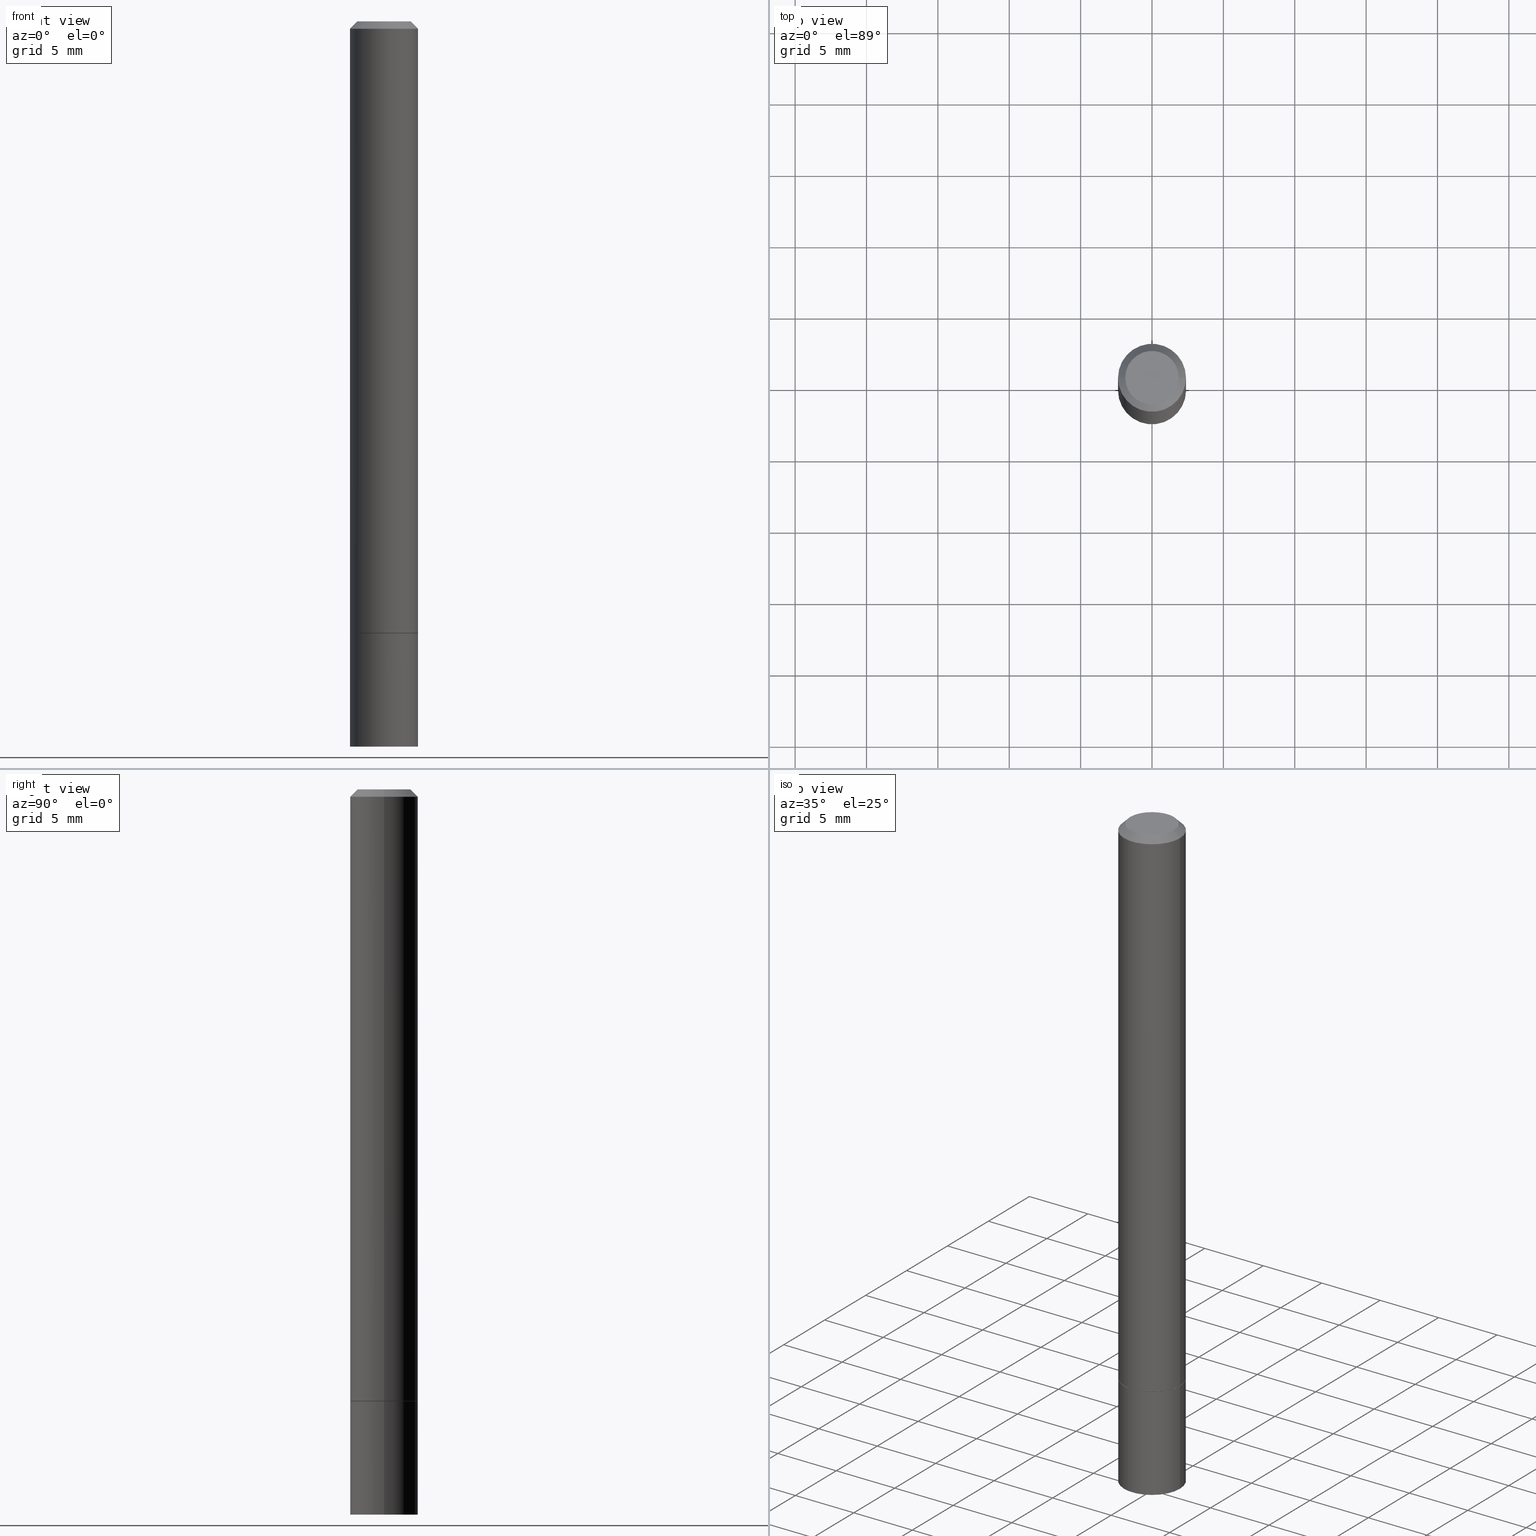
[diagram: canonical four-view strip — front | top / right | iso, engineering-drawing reading convention]
A machine part, canonical four-view strip (front | top / right | iso — engineering-drawing reading convention). The complete STEP part file that produces these views, byte-faithful:
ISO-10303-21;
HEADER;
FILE_DESCRIPTION (( 'STEP AP203' ),
    '1' );
FILE_NAME ('38501.STEP',
    '2024-02-27T22:51:59',
    ( '' ),
    ( '' ),
    'SwSTEP 2.0',
    'SolidWorks 2023',
    '' );
FILE_SCHEMA (( 'CONFIG_CONTROL_DESIGN' ));
ENDSEC;

DATA;
#1 = CARTESIAN_POINT ( 'NONE',  ( 4.890937612370273194E-29, -6.982962677686291165E-15, -2.000000000000000000 ) ) ;
#2 = CARTESIAN_POINT ( 'NONE',  ( -0.09374999999999988898, 6.661338147750931354E-16, -4.611501647113968390E-30 ) ) ;
#3 = EDGE_CURVE ( 'NONE', #359, #108, #273, .T. ) ;
#4 = SECURITY_CLASSIFICATION ( '', '', #357 ) ;
#5 = ORIENTED_EDGE ( 'NONE', *, *, #98, .F. ) ;
#6 = APPROVAL ( #272, 'UNSPECIFIED' ) ;
#7 = CARTESIAN_POINT ( 'NONE',  ( 0.000000000000000000, 0.000000000000000000, 0.000000000000000000 ) ) ;
#8 = ORIENTED_EDGE ( 'NONE', *, *, #365, .F. ) ;
#9 = CARTESIAN_POINT ( 'NONE',  ( 6.546527510331287221E-16, 0.09374999999999411582, -1.687500000000000222 ) ) ;
#10 = MANIFOLD_SOLID_BREP ( 'Body-Move/Copy2[1]', #242 ) ;
#11 = FACE_OUTER_BOUND ( 'NONE', #159, .T. ) ;
#12 = AXIS2_PLACEMENT_3D ( 'NONE', #259, #60, #363 ) ;
#13 = EDGE_CURVE ( 'NONE', #307, #50, #230, .T. ) ;
#14 = AXIS2_PLACEMENT_3D ( 'NONE', #227, #316, #290 ) ;
#15 = ORIENTED_EDGE ( 'NONE', *, *, #293, .T. ) ;
#16 = ADVANCED_FACE ( 'NONE', ( #254 ), #19, .T. ) ;
#17 = CALENDAR_DATE ( 2024, 27, 2 ) ;
#18 = CARTESIAN_POINT ( 'NONE',  ( -0.09374999999999979183, 5.848231242562229240E-16, -0.02000000000000003858 ) ) ;
#19 = CYLINDRICAL_SURFACE ( 'NONE', #223, 0.09374999999999988898 ) ;
#20 = CIRCLE ( 'NONE', #214, 0.09374999999999979183 ) ;
#21 = AXIS2_PLACEMENT_3D ( 'NONE', #7, #350, #121 ) ;
#22 = PERSON_AND_ORGANIZATION ( #87, #174 ) ;
#23 = VERTEX_POINT ( 'NONE', #332 ) ;
#24 = PERSON_AND_ORGANIZATION_ROLE ( 'creator' ) ;
#25 = EDGE_CURVE ( 'NONE', #305, #23, #339, .T. ) ;
#26 = ORIENTED_EDGE ( 'NONE', *, *, #139, .F. ) ;
#27 = EDGE_LOOP ( 'NONE', ( #301, #134, #5, #26 ) ) ;
#28 = DIRECTION ( 'NONE',  ( 1.000000000000000000, -6.982962677686261189E-15, 0.000000000000000000 ) ) ;
#29 = CC_DESIGN_PERSON_AND_ORGANIZATION_ASSIGNMENT ( #110, #191, ( #32 ) ) ;
#30 = CARTESIAN_POINT ( 'NONE',  ( 0.09375000000000001388, -7.637615428719378669E-15, -2.000000000000000000 ) ) ;
#31 = FACE_OUTER_BOUND ( 'NONE', #226, .T. ) ;
#32 = PRODUCT_DEFINITION_FORMATION_WITH_SPECIFIED_SOURCE ( 'ANY', '', #333, .NOT_KNOWN. ) ;
#33 = DIRECTION ( 'NONE',  ( 2.445468806185136597E-29, -3.491481338843145583E-15, -1.000000000000000000 ) ) ;
#34 = DIRECTION ( 'NONE',  ( -1.000000000000000000, 6.982962677686266711E-15, 0.000000000000000000 ) ) ;
#35 = PLANE ( 'NONE',  #43 ) ;
#36 = CLOSED_SHELL ( 'NONE', ( #219, #236, #162, #323, #16, #131, #202, #144 ) ) ;
#37 = CC_DESIGN_APPROVAL ( #6, ( #4 ) ) ;
#38 = CARTESIAN_POINT ( 'NONE',  ( 0.07374999999999981570, -6.094815207017959226E-16, 4.268512490104342487E-18 ) ) ;
#39 = DIRECTION ( 'NONE',  ( -2.445468806185136597E-29, 3.491481338843145583E-15, 1.000000000000000000 ) ) ;
#40 = EDGE_CURVE ( 'NONE', #307, #108, #92, .T. ) ;
#41 = DIRECTION ( 'NONE',  ( 2.438088387897960049E-29, -3.491481338843145188E-15, -1.000000000000000000 ) ) ;
#42 = CARTESIAN_POINT ( 'NONE',  ( 0.000000000000000000, 0.000000000000000000, 0.000000000000000000 ) ) ;
#43 = AXIS2_PLACEMENT_3D ( 'NONE', #9, #41, #348 ) ;
#44 = COORDINATED_UNIVERSAL_TIME_OFFSET ( 5, 0, .BEHIND. ) ;
#45 = ORIENTED_EDGE ( 'NONE', *, *, #127, .T. ) ;
#46 = APPROVAL_STATUS ( 'not_yet_approved' ) ;
#47 = DIRECTION ( 'NONE',  ( 1.000000000000000000, -6.982962677686265133E-15, 4.876176775795935793E-29 ) ) ;
#48 = COORDINATED_UNIVERSAL_TIME_OFFSET ( 5, 0, .BEHIND. ) ;
#49 = AXIS2_PLACEMENT_3D ( 'NONE', #246, #302, #353 ) ;
#50 = VERTEX_POINT ( 'NONE', #57 ) ;
#51 = AXIS2_PLACEMENT_3D ( 'NONE', #291, #96, #210 ) ;
#52 = COORDINATED_UNIVERSAL_TIME_OFFSET ( 5, 0, .BEHIND. ) ;
#53 = ORIENTED_EDGE ( 'NONE', *, *, #25, .T. ) ;
#54 = PERSON_AND_ORGANIZATION ( #87, #174 ) ;
#55 = ORIENTED_EDGE ( 'NONE', *, *, #293, .F. ) ;
#56 = CC_DESIGN_PERSON_AND_ORGANIZATION_ASSIGNMENT ( #352, #24, ( #257 ) ) ;
#57 = CARTESIAN_POINT ( 'NONE',  ( 0.09375000000000001388, -6.543036028992051756E-15, -1.686499999999999888 ) ) ;
#58 = CIRCLE ( 'NONE', #208, 0.09274999999999999911 ) ;
#59 = LOCAL_TIME ( 17, 51, 59.00000000000000000, #274 ) ;
#60 = DIRECTION ( 'NONE',  ( -2.445468806185136597E-29, 3.491481338843145583E-15, 1.000000000000000000 ) ) ;
#61 = EDGE_CURVE ( 'NONE', #82, #188, #155, .T. ) ;
#62 = FACE_OUTER_BOUND ( 'NONE', #132, .T. ) ;
#63 = ADVANCED_FACE ( 'NONE', ( #308 ), #199, .T. ) ;
#64 = DIRECTION ( 'NONE',  ( 1.000000000000000000, -6.982962677686261189E-15, 0.000000000000000000 ) ) ;
#65 = LOCAL_TIME ( 17, 51, 59.00000000000000000, #52 ) ;
#66 = CC_DESIGN_PERSON_AND_ORGANIZATION_ASSIGNMENT ( #133, #251, ( #4 ) ) ;
#67 = DIRECTION ( 'NONE',  ( -2.445468806185136597E-29, 3.491481338843145583E-15, 1.000000000000000000 ) ) ;
#68 = PLANE ( 'NONE',  #51 ) ;
#69 = EDGE_LOOP ( 'NONE', ( #336, #256, #8, #190 ) ) ;
#70 = CARTESIAN_POINT ( 'NONE',  ( 4.124283141631232404E-29, -5.888383277958965040E-15, -1.686499999999999888 ) ) ;
#71 = DIRECTION ( 'NONE',  ( 1.000000000000000000, -6.982962677686261189E-15, 0.000000000000000000 ) ) ;
#72 = MECHANICAL_CONTEXT ( 'NONE', #289, 'mechanical' ) ;
#73 = AXIS2_PLACEMENT_3D ( 'NONE', #347, #264, #97 ) ;
#74 = ORIENTED_EDGE ( 'NONE', *, *, #127, .F. ) ;
#75 = APPLICATION_PROTOCOL_DEFINITION ( 'international standard', 'config_control_design', 1994, #294 ) ;
#76 = ADVANCED_FACE ( 'NONE', ( #62 ), #201, .T. ) ;
#77 = ORIENTED_EDGE ( 'NONE', *, *, #268, .F. ) ;
#78 = DATE_AND_TIME ( #335, #118 ) ;
#79 = ORIENTED_EDGE ( 'NONE', *, *, #25, .F. ) ;
#80 = PERSON_AND_ORGANIZATION_ROLE ( 'design_owner' ) ;
#81 = AXIS2_PLACEMENT_3D ( 'NONE', #1, #232, #28 ) ;
#82 = VERTEX_POINT ( 'NONE', #30 ) ;
#83 = AXIS2_PLACEMENT_3D ( 'NONE', #297, #39, #71 ) ;
#84 = EDGE_CURVE ( 'NONE', #50, #126, #285, .T. ) ;
#85 = ORIENTED_EDGE ( 'NONE', *, *, #3, .F. ) ;
#86 = CARTESIAN_POINT ( 'NONE',  ( 4.890937612370282792E-31, -6.982962677686303935E-17, -0.02000000000000003858 ) ) ;
#87 = PERSON ( 'UNSPECIFIED', 'UNSPECIFIED', 'UNSPECIFIED', ('UNSPECIFIED'), ('UNSPECIFIED'), ('UNSPECIFIED') ) ;
#88 = EDGE_CURVE ( 'NONE', #23, #305, #58, .T. ) ;
#89 = CARTESIAN_POINT ( 'NONE',  ( 4.126728610437418007E-29, -5.891874759297807259E-15, -1.687500000000000000 ) ) ;
#90 = CIRCLE ( 'NONE', #283, 0.09374999999999979183 ) ;
#91 = CARTESIAN_POINT ( 'NONE',  ( 0.09375000000000001388, -6.546527510330875041E-16, 4.571415727308690506E-30 ) ) ;
#92 = LINE ( 'NONE', #2, #111 ) ;
#93 = CARTESIAN_POINT ( 'NONE',  ( 4.126728610437418007E-29, -5.891874759297807259E-15, -1.687500000000000000 ) ) ;
#94 = CARTESIAN_POINT ( 'NONE',  ( -0.09274999999999999911, -5.227547917532092729E-15, -1.687500000000000000 ) ) ;
#95 = APPROVAL ( #46, 'UNSPECIFIED' ) ;
#96 = DIRECTION ( 'NONE',  ( -2.438088387897960049E-29, 3.491481338843145188E-15, 1.000000000000000000 ) ) ;
#97 = DIRECTION ( 'NONE',  ( -1.000000000000000000, 6.982962677686266711E-15, 0.000000000000000000 ) ) ;
#98 = EDGE_CURVE ( 'NONE', #296, #275, #343, .T. ) ;
#99 = AXIS2_PLACEMENT_3D ( 'NONE', #70, #123, #267 ) ;
#100 = CARTESIAN_POINT ( 'NONE',  ( -0.09375000000000001388, -5.771284903716954893E-15, -1.687500000000000000 ) ) ;
#101 = APPROVAL ( #279, 'UNSPECIFIED' ) ;
#102 = CYLINDRICAL_SURFACE ( 'NONE', #21, 0.09374999999999988898 ) ;
#103 = EDGE_CURVE ( 'NONE', #108, #126, #20, .T. ) ;
#104 = APPROVAL_DATE_TIME ( #218, #95 ) ;
#105 = CONICAL_SURFACE ( 'NONE', #129, 0.09374999999999979183, 0.7853981633974466137 ) ;
#106 = ORIENTED_EDGE ( 'NONE', *, *, #136, .T. ) ;
#107 = PERSON_AND_ORGANIZATION ( #87, #174 ) ;
#108 = VERTEX_POINT ( 'NONE', #143 ) ;
#109 = EDGE_LOOP ( 'NONE', ( #184, #106 ) ) ;
#110 = PERSON_AND_ORGANIZATION ( #87, #174 ) ;
#111 = VECTOR ( 'NONE', #309, 39.37007874015748143 ) ;
#112 = EDGE_LOOP ( 'NONE', ( #140, #79 ) ) ;
#113 = CIRCLE ( 'NONE', #270, 0.07374999999999981570 ) ;
#114 = ORIENTED_EDGE ( 'NONE', *, *, #200, .T. ) ;
#115 = DIRECTION ( 'NONE',  ( -2.445468806185136597E-29, 3.491481338843145583E-15, 1.000000000000000000 ) ) ;
#116 = UNCERTAINTY_MEASURE_WITH_UNIT (LENGTH_MEASURE( 1.000000000000000082E-05 ), #295, 'distance_accuracy_value', 'NONE');
#117 = DIRECTION ( 'NONE',  ( 1.000000000000000000, -6.982962677686265922E-15, 4.876176775795935793E-29 ) ) ;
#118 = LOCAL_TIME ( 17, 51, 59.00000000000000000, #48 ) ;
#119 = CARTESIAN_POINT ( 'NONE',  ( 4.126728610437418007E-29, -5.891874759297807259E-15, -1.687500000000000000 ) ) ;
#120 = CARTESIAN_POINT ( 'NONE',  ( -0.09375000000000001388, -5.771284903716954893E-15, -2.000000000000000000 ) ) ;
#121 = DIRECTION ( 'NONE',  ( 1.000000000000000000, -6.982962677686265133E-15, 4.876176775795935793E-29 ) ) ;
#122 = AXIS2_PLACEMENT_3D ( 'NONE', #42, #244, #321 ) ;
#123 = DIRECTION ( 'NONE',  ( -2.445468806185136597E-29, 3.491481338843145583E-15, 1.000000000000000000 ) ) ;
#124 = EDGE_LOOP ( 'NONE', ( #192, #238, #250, #85 ) ) ;
#125 = LINE ( 'NONE', #178, #313 ) ;
#126 = VERTEX_POINT ( 'NONE', #168 ) ;
#127 = EDGE_CURVE ( 'NONE', #305, #307, #258, .T. ) ;
#128 = CARTESIAN_POINT ( 'NONE',  ( 4.126728610437418007E-29, -5.891874759297807259E-15, -1.687500000000000000 ) ) ;
#129 = AXIS2_PLACEMENT_3D ( 'NONE', #86, #33, #34 ) ;
#130 =( NAMED_UNIT ( * ) PLANE_ANGLE_UNIT ( ) SI_UNIT ( $, .RADIAN. ) );
#131 = ADVANCED_FACE ( 'NONE', ( #31 ), #177, .T. ) ;
#132 = EDGE_LOOP ( 'NONE', ( #240, #55 ) ) ;
#133 = PERSON_AND_ORGANIZATION ( #87, #174 ) ;
#134 = ORIENTED_EDGE ( 'NONE', *, *, #358, .T. ) ;
#135 = PERSON_AND_ORGANIZATION_ROLE ( 'design_supplier' ) ;
#136 = EDGE_CURVE ( 'NONE', #275, #296, #196, .T. ) ;
#137 = ORIENTED_EDGE ( 'NONE', *, *, #13, .T. ) ;
#138 = CALENDAR_DATE ( 2024, 27, 2 ) ;
#139 = EDGE_CURVE ( 'NONE', #82, #296, #229, .T. ) ;
#140 = ORIENTED_EDGE ( 'NONE', *, *, #88, .F. ) ;
#141 = VECTOR ( 'NONE', #175, 39.37007874015748143 ) ;
#142 = EDGE_LOOP ( 'NONE', ( #164, #166, #167, #356 ) ) ;
#143 = CARTESIAN_POINT ( 'NONE',  ( -0.09374999999999979183, 5.848231242562229240E-16, -0.02000000000000003858 ) ) ;
#144 = ADVANCED_FACE ( 'NONE', ( #146 ), #197, .F. ) ;
#145 = MANIFOLD_SOLID_BREP ( 'Body-Move/Copy2[2]', #36 ) ;
#146 = FACE_OUTER_BOUND ( 'NONE', #330, .T. ) ;
#147 = VECTOR ( 'NONE', #262, 39.37007874015748143 ) ;
#148 = DIRECTION ( 'NONE',  ( 1.000000000000000000, -6.982962677686266711E-15, 0.000000000000000000 ) ) ;
#149 = DIRECTION ( 'NONE',  ( 0.7071067811865462405, -7.319954787623251312E-15, -0.7071067811865486830 ) ) ;
#150 =( LENGTH_UNIT ( ) NAMED_UNIT ( * ) SI_UNIT ( $, .METRE. ) );
#151 = VECTOR ( 'NONE', #252, 39.37007874015748854 ) ;
#152 = CARTESIAN_POINT ( 'NONE',  ( 0.09375000000000001388, -6.546527510330894763E-15, -1.687500000000000000 ) ) ;
#153 = DIRECTION ( 'NONE',  ( -2.445468806185136597E-29, 3.491481338843145583E-15, 1.000000000000000000 ) ) ;
#154 = ORIENTED_EDGE ( 'NONE', *, *, #211, .T. ) ;
#155 = CIRCLE ( 'NONE', #81, 0.09375000000000001388 ) ;
#156 =( GEOMETRIC_REPRESENTATION_CONTEXT ( 3 ) GLOBAL_UNCERTAINTY_ASSIGNED_CONTEXT ( ( #116 ) ) GLOBAL_UNIT_ASSIGNED_CONTEXT ( ( #295, #130, #189 ) ) REPRESENTATION_CONTEXT ( 'NONE', 'WORKASPACE' ) );
#157 = LINE ( 'NONE', #315, #349 ) ;
#158 = PERSON_AND_ORGANIZATION ( #87, #174 ) ;
#159 = EDGE_LOOP ( 'NONE', ( #325, #45, #77, #220 ) ) ;
#160 = DATE_AND_TIME ( #138, #65 ) ;
#161 = ORIENTED_EDGE ( 'NONE', *, *, #280, .T. ) ;
#162 = ADVANCED_FACE ( 'NONE', ( #173 ), #105, .T. ) ;
#163 = CIRCLE ( 'NONE', #99, 0.09375000000000001388 ) ;
#164 = ORIENTED_EDGE ( 'NONE', *, *, #194, .F. ) ;
#165 = CC_DESIGN_PERSON_AND_ORGANIZATION_ASSIGNMENT ( #107, #80, ( #333 ) ) ;
#166 = ORIENTED_EDGE ( 'NONE', *, *, #200, .F. ) ;
#167 = ORIENTED_EDGE ( 'NONE', *, *, #3, .T. ) ;
#168 = CARTESIAN_POINT ( 'NONE',  ( 0.09374999999999979183, -7.130013140679427058E-16, -0.02000000000000003858 ) ) ;
#169 = CC_DESIGN_DATE_AND_TIME_ASSIGNMENT ( #249, #224, ( #4 ) ) ;
#170 = CC_DESIGN_APPROVAL ( #95, ( #32 ) ) ;
#171 = DIRECTION ( 'NONE',  ( 2.438088387897960049E-29, -3.491481338843145188E-15, -1.000000000000000000 ) ) ;
#172 = DIRECTION ( 'NONE',  ( -0.7071067811865232589, 7.493145998870265808E-15, 0.7071067811865715536 ) ) ;
#173 = FACE_OUTER_BOUND ( 'NONE', #124, .T. ) ;
#174 = ORGANIZATION ( 'UNSPECIFIED', 'UNSPECIFIED', '' ) ;
#175 = DIRECTION ( 'NONE',  ( -2.445468806185136877E-29, 3.491481338843145188E-15, 1.000000000000000000 ) ) ;
#176 = DIRECTION ( 'NONE',  ( 1.000000000000000000, -6.982962677686273021E-15, 0.000000000000000000 ) ) ;
#177 = CONICAL_SURFACE ( 'NONE', #318, 0.09274999999999999911, 0.7853981633974141952 ) ;
#178 = CARTESIAN_POINT ( 'NONE',  ( 0.09274999999999999911, -6.539544547653209537E-15, -1.687500000000000000 ) ) ;
#179 = LENGTH_MEASURE_WITH_UNIT ( LENGTH_MEASURE( 0.02539999999999999897 ), #150 );
#180 = DIMENSIONAL_EXPONENTS ( 1.000000000000000000, 0.000000000000000000, 0.000000000000000000, 0.000000000000000000, 0.000000000000000000, 0.000000000000000000, 0.000000000000000000 ) ;
#181 = FACE_OUTER_BOUND ( 'NONE', #69, .T. ) ;
#182 = PRODUCT_DEFINITION_SHAPE ( 'NONE', 'NONE',  #257 ) ;
#183 = PERSON_AND_ORGANIZATION ( #87, #174 ) ;
#184 = ORIENTED_EDGE ( 'NONE', *, *, #98, .T. ) ;
#185 = COORDINATED_UNIVERSAL_TIME_OFFSET ( 5, 0, .BEHIND. ) ;
#186 = ORIENTED_EDGE ( 'NONE', *, *, #103, .F. ) ;
#187 = DATE_TIME_ROLE ( 'creation_date' ) ;
#188 = VERTEX_POINT ( 'NONE', #120 ) ;
#189 =( NAMED_UNIT ( * ) SI_UNIT ( $, .STERADIAN. ) SOLID_ANGLE_UNIT ( ) );
#190 = ORIENTED_EDGE ( 'NONE', *, *, #84, .F. ) ;
#191 = PERSON_AND_ORGANIZATION_ROLE ( 'creator' ) ;
#192 = ORIENTED_EDGE ( 'NONE', *, *, #211, .F. ) ;
#193 = DESIGN_CONTEXT ( 'detailed design', #294, 'design' ) ;
#194 = EDGE_CURVE ( 'NONE', #282, #126, #203, .T. ) ;
#195 = CARTESIAN_POINT ( 'NONE',  ( 0.000000000000000000, 0.000000000000000000, 0.000000000000000000 ) ) ;
#196 = CIRCLE ( 'NONE', #207, 0.09375000000000001388 ) ;
#197 = PLANE ( 'NONE',  #215 ) ;
#198 = CONICAL_SURFACE ( 'NONE', #73, 0.09374999999999979183, 0.7853981633974466137 ) ;
#199 = CYLINDRICAL_SURFACE ( 'NONE', #326, 0.09375000000000001388 ) ;
#200 = EDGE_CURVE ( 'NONE', #359, #282, #299, .T. ) ;
#201 = PLANE ( 'NONE',  #298 ) ;
#202 = ADVANCED_FACE ( 'NONE', ( #346 ), #68, .F. ) ;
#203 = LINE ( 'NONE', #233, #354 ) ;
#204 = FACE_OUTER_BOUND ( 'NONE', #109, .T. ) ;
#205 = FACE_OUTER_BOUND ( 'NONE', #278, .T. ) ;
#206 = DIRECTION ( 'NONE',  ( -2.445468806185136877E-29, 3.491481338843145188E-15, 1.000000000000000000 ) ) ;
#207 = AXIS2_PLACEMENT_3D ( 'NONE', #93, #341, #64 ) ;
#208 = AXIS2_PLACEMENT_3D ( 'NONE', #119, #340, #342 ) ;
#209 = CIRCLE ( 'NONE', #83, 0.09375000000000001388 ) ;
#210 = DIRECTION ( 'NONE',  ( 1.000000000000000000, -6.982962677686265922E-15, 4.876176775795935793E-29 ) ) ;
#211 = EDGE_CURVE ( 'NONE', #282, #359, #113, .T. ) ;
#212 = CARTESIAN_POINT ( 'NONE',  ( -1.043851414335219820E-46, 1.490343170380447200E-32, 4.268512490100411279E-18 ) ) ;
#213 = ORIENTED_EDGE ( 'NONE', *, *, #13, .F. ) ;
#214 = AXIS2_PLACEMENT_3D ( 'NONE', #263, #115, #148 ) ;
#215 = AXIS2_PLACEMENT_3D ( 'NONE', #261, #366, #311 ) ;
#216 = APPROVAL_DATE_TIME ( #78, #6 ) ;
#217 = DIRECTION ( 'NONE',  ( -2.445468806185136597E-29, 3.491481338843145583E-15, 1.000000000000000000 ) ) ;
#218 = DATE_AND_TIME ( #277, #235 ) ;
#219 = ADVANCED_FACE ( 'NONE', ( #11 ), #260, .T. ) ;
#220 = ORIENTED_EDGE ( 'NONE', *, *, #280, .F. ) ;
#221 = SHAPE_DEFINITION_REPRESENTATION ( #182, #322 ) ;
#222 = ORIENTED_EDGE ( 'NONE', *, *, #358, .F. ) ;
#223 = AXIS2_PLACEMENT_3D ( 'NONE', #360, #217, #47 ) ;
#224 = DATE_TIME_ROLE ( 'classification_date' ) ;
#225 = APPROVAL_PERSON_ORGANIZATION ( #183, #101, #306 ) ;
#226 = EDGE_LOOP ( 'NONE', ( #74, #53, #161, #213 ) ) ;
#227 = CARTESIAN_POINT ( 'NONE',  ( -1.043851414335219820E-46, 1.490343170380447200E-32, 4.268512490100411279E-18 ) ) ;
#228 = CC_DESIGN_DATE_AND_TIME_ASSIGNMENT ( #160, #187, ( #257 ) ) ;
#229 = LINE ( 'NONE', #91, #147 ) ;
#230 = CIRCLE ( 'NONE', #49, 0.09375000000000001388 ) ;
#231 = CARTESIAN_POINT ( 'NONE',  ( 0.09374999999999988898, -6.546527510330866166E-16, 4.571415727308684201E-30 ) ) ;
#232 = DIRECTION ( 'NONE',  ( -2.445468806185136597E-29, 3.491481338843145583E-15, 1.000000000000000000 ) ) ;
#233 = CARTESIAN_POINT ( 'NONE',  ( 0.09374999999999979183, -7.130013140679427058E-16, -0.02000000000000003858 ) ) ;
#234 = DIRECTION ( 'NONE',  ( 1.000000000000000000, -6.982962677686265922E-15, 4.875869617646597298E-29 ) ) ;
#235 = LOCAL_TIME ( 17, 51, 59.00000000000000000, #44 ) ;
#236 = ADVANCED_FACE ( 'NONE', ( #181 ), #102, .T. ) ;
#237 = DIRECTION ( 'NONE',  ( -2.445468806185136597E-29, 3.491481338843145583E-15, 1.000000000000000000 ) ) ;
#238 = ORIENTED_EDGE ( 'NONE', *, *, #194, .T. ) ;
#239 = CYLINDRICAL_SURFACE ( 'NONE', #122, 0.09375000000000001388 ) ;
#240 = ORIENTED_EDGE ( 'NONE', *, *, #61, .F. ) ;
#241 = DIRECTION ( 'NONE',  ( 1.000000000000000000, -6.982962677686266711E-15, 0.000000000000000000 ) ) ;
#242 = CLOSED_SHELL ( 'NONE', ( #63, #76, #312, #320 ) ) ;
#243 = APPROVAL_PERSON_ORGANIZATION ( #54, #95, #253 ) ;
#244 = DIRECTION ( 'NONE',  ( -2.445468806185136597E-29, 3.491481338843145583E-15, 1.000000000000000000 ) ) ;
#245 = DIRECTION ( 'NONE',  ( 0.000000000000000000, 0.000000000000000000, 1.000000000000000000 ) ) ;
#246 = CARTESIAN_POINT ( 'NONE',  ( 4.124283141631232404E-29, -5.888383277958965040E-15, -1.686499999999999888 ) ) ;
#247 = PRODUCT_RELATED_PRODUCT_CATEGORY ( 'detail', '', ( #333 ) ) ;
#248 = CC_DESIGN_SECURITY_CLASSIFICATION ( #4, ( #32 ) ) ;
#249 = DATE_AND_TIME ( #355, #59 ) ;
#250 = ORIENTED_EDGE ( 'NONE', *, *, #365, .T. ) ;
#251 = PERSON_AND_ORGANIZATION_ROLE ( 'classification_officer' ) ;
#252 = DIRECTION ( 'NONE',  ( -0.7071067811865462405, 2.468850131082243650E-15, -0.7071067811865486830 ) ) ;
#253 = APPROVAL_ROLE ( '' ) ;
#254 = FACE_OUTER_BOUND ( 'NONE', #292, .T. ) ;
#255 = AXIS2_PLACEMENT_3D ( 'NONE', #128, #237, #176 ) ;
#256 = ORIENTED_EDGE ( 'NONE', *, *, #40, .T. ) ;
#257 = PRODUCT_DEFINITION ( 'UNKNOWN', '', #32, #193 ) ;
#258 = LINE ( 'NONE', #362, #265 ) ;
#259 = CARTESIAN_POINT ( 'NONE',  ( 4.126728610437418007E-29, -5.891874759297807259E-15, -1.687500000000000000 ) ) ;
#260 = CONICAL_SURFACE ( 'NONE', #255, 0.09274999999999999911, 0.7853981633974141952 ) ;
#261 = CARTESIAN_POINT ( 'NONE',  ( 5.149934974793608091E-16, 0.07374999999999981570, -2.553624924946311280E-16 ) ) ;
#262 = DIRECTION ( 'NONE',  ( -2.445468806185136877E-29, 3.491481338843145188E-15, 1.000000000000000000 ) ) ;
#263 = CARTESIAN_POINT ( 'NONE',  ( 4.890937612370282792E-31, -6.982962677686303935E-17, -0.02000000000000003858 ) ) ;
#264 = DIRECTION ( 'NONE',  ( 2.445468806185136597E-29, -3.491481338843145583E-15, -1.000000000000000000 ) ) ;
#265 = VECTOR ( 'NONE', #172, 39.37007874015748854 ) ;
#266 = APPROVAL_PERSON_ORGANIZATION ( #158, #6, #331 ) ;
#267 = DIRECTION ( 'NONE',  ( 1.000000000000000000, -6.982962677686261189E-15, 0.000000000000000000 ) ) ;
#268 = EDGE_CURVE ( 'NONE', #50, #307, #163, .T. ) ;
#269 = CARTESIAN_POINT ( 'NONE',  ( -0.09375000000000001388, -2.312972637592815906E-15, -1.686499999999999888 ) ) ;
#270 = AXIS2_PLACEMENT_3D ( 'NONE', #212, #153, #234 ) ;
#271 = CARTESIAN_POINT ( 'NONE',  ( -0.07374999999999981570, 5.499083108677918666E-16, 4.268512490096688071E-18 ) ) ;
#272 = APPROVAL_STATUS ( 'not_yet_approved' ) ;
#273 = LINE ( 'NONE', #18, #151 ) ;
#274 = COORDINATED_UNIVERSAL_TIME_OFFSET ( 5, 0, .BEHIND. ) ;
#275 = VERTEX_POINT ( 'NONE', #100 ) ;
#276 = CC_DESIGN_APPROVAL ( #101, ( #257 ) ) ;
#277 = CALENDAR_DATE ( 2024, 27, 2 ) ;
#278 = EDGE_LOOP ( 'NONE', ( #222, #15, #361, #334 ) ) ;
#279 = APPROVAL_STATUS ( 'not_yet_approved' ) ;
#280 = EDGE_CURVE ( 'NONE', #23, #50, #125, .T. ) ;
#281 = ORIENTED_EDGE ( 'NONE', *, *, #40, .F. ) ;
#282 = VERTEX_POINT ( 'NONE', #38 ) ;
#283 = AXIS2_PLACEMENT_3D ( 'NONE', #319, #67, #241 ) ;
#284 = DIRECTION ( 'NONE',  ( -2.445468806185136597E-29, 3.491481338843145583E-15, 1.000000000000000000 ) ) ;
#285 = LINE ( 'NONE', #231, #141 ) ;
#286 = DIRECTION ( 'NONE',  ( -2.445468806185136597E-29, 3.491481338843145583E-15, 1.000000000000000000 ) ) ;
#287 = DIRECTION ( 'NONE',  ( 1.000000000000000000, -6.982962677686261189E-15, 0.000000000000000000 ) ) ;
#288 = CARTESIAN_POINT ( 'NONE',  ( 4.126728610437418007E-29, -5.891874759297807259E-15, -1.687500000000000000 ) ) ;
#289 = APPLICATION_CONTEXT ( 'configuration controlled 3d designs of mechanical parts and assemblies' ) ;
#290 = DIRECTION ( 'NONE',  ( 1.000000000000000000, -6.982962677686265922E-15, 4.875869617646597298E-29 ) ) ;
#291 = CARTESIAN_POINT ( 'NONE',  ( 4.126728610437418007E-29, -5.891874759297807259E-15, -1.687500000000000000 ) ) ;
#292 = EDGE_LOOP ( 'NONE', ( #281, #137, #303, #186 ) ) ;
#293 = EDGE_CURVE ( 'NONE', #188, #82, #209, .T. ) ;
#294 = APPLICATION_CONTEXT ( 'configuration controlled 3d designs of mechanical parts and assemblies' ) ;
#295 =( CONVERSION_BASED_UNIT ( 'INCH', #179 ) LENGTH_UNIT ( ) NAMED_UNIT ( #180 ) );
#296 = VERTEX_POINT ( 'NONE', #152 ) ;
#297 = CARTESIAN_POINT ( 'NONE',  ( 4.890937612370273194E-29, -6.982962677686291165E-15, -2.000000000000000000 ) ) ;
#298 = AXIS2_PLACEMENT_3D ( 'NONE', #337, #171, #314 ) ;
#299 = CIRCLE ( 'NONE', #14, 0.07374999999999981570 ) ;
#300 = APPROVAL_DATE_TIME ( #304, #101 ) ;
#301 = ORIENTED_EDGE ( 'NONE', *, *, #61, .T. ) ;
#302 = DIRECTION ( 'NONE',  ( -2.445468806185136597E-29, 3.491481338843145583E-15, 1.000000000000000000 ) ) ;
#303 = ORIENTED_EDGE ( 'NONE', *, *, #84, .T. ) ;
#304 = DATE_AND_TIME ( #17, #327 ) ;
#305 = VERTEX_POINT ( 'NONE', #94 ) ;
#306 = APPROVAL_ROLE ( '' ) ;
#307 = VERTEX_POINT ( 'NONE', #269 ) ;
#308 = FACE_OUTER_BOUND ( 'NONE', #27, .T. ) ;
#309 = DIRECTION ( 'NONE',  ( -2.445468806185136877E-29, 3.491481338843145188E-15, 1.000000000000000000 ) ) ;
#310 = DIRECTION ( 'NONE',  ( -2.445468806185136597E-29, 3.491481338843145583E-15, 1.000000000000000000 ) ) ;
#311 = DIRECTION ( 'NONE',  ( -1.000000000000000000, 6.982962677686265922E-15, -4.876176775795935793E-29 ) ) ;
#312 = ADVANCED_FACE ( 'NONE', ( #204 ), #35, .F. ) ;
#313 = VECTOR ( 'NONE', #345, 39.37007874015748854 ) ;
#314 = DIRECTION ( 'NONE',  ( -1.000000000000000000, 6.982962677686265922E-15, -4.876176775795935793E-29 ) ) ;
#315 = CARTESIAN_POINT ( 'NONE',  ( -0.09375000000000001388, 6.661338147750940229E-16, -4.611501647113973995E-30 ) ) ;
#316 = DIRECTION ( 'NONE',  ( -2.445468806185136597E-29, 3.491481338843145583E-15, 1.000000000000000000 ) ) ;
#317 = FACE_OUTER_BOUND ( 'NONE', #142, .T. ) ;
#318 = AXIS2_PLACEMENT_3D ( 'NONE', #288, #284, #338 ) ;
#319 = CARTESIAN_POINT ( 'NONE',  ( 4.890937612370282792E-31, -6.982962677686303935E-17, -0.02000000000000003858 ) ) ;
#320 = ADVANCED_FACE ( 'NONE', ( #205 ), #239, .T. ) ;
#321 = DIRECTION ( 'NONE',  ( 1.000000000000000000, -6.982962677686265922E-15, 4.876176775795935793E-29 ) ) ;
#322 = ADVANCED_BREP_SHAPE_REPRESENTATION ( '38501', ( #10, #145, #344 ), #156 ) ;
#323 = ADVANCED_FACE ( 'NONE', ( #317 ), #198, .T. ) ;
#324 = APPLICATION_PROTOCOL_DEFINITION ( 'international standard', 'config_control_design', 1994, #289 ) ;
#325 = ORIENTED_EDGE ( 'NONE', *, *, #88, .T. ) ;
#326 = AXIS2_PLACEMENT_3D ( 'NONE', #195, #310, #117 ) ;
#327 = LOCAL_TIME ( 17, 51, 59.00000000000000000, #185 ) ;
#328 = CC_DESIGN_PERSON_AND_ORGANIZATION_ASSIGNMENT ( #22, #135, ( #32 ) ) ;
#329 = DIRECTION ( 'NONE',  ( 1.000000000000000000, 0.000000000000000000, 0.000000000000000000 ) ) ;
#330 = EDGE_LOOP ( 'NONE', ( #114, #154 ) ) ;
#331 = APPROVAL_ROLE ( '' ) ;
#332 = CARTESIAN_POINT ( 'NONE',  ( 0.09274999999999999911, -6.539544547653209537E-15, -1.687500000000000000 ) ) ;
#333 = PRODUCT ( '38501', '38501', '', ( #72 ) ) ;
#334 = ORIENTED_EDGE ( 'NONE', *, *, #136, .F. ) ;
#335 = CALENDAR_DATE ( 2024, 27, 2 ) ;
#336 = ORIENTED_EDGE ( 'NONE', *, *, #268, .T. ) ;
#337 = CARTESIAN_POINT ( 'NONE',  ( 6.546527510331364135E-16, 0.09374999999999301947, -2.000000000000000444 ) ) ;
#338 = DIRECTION ( 'NONE',  ( 1.000000000000000000, -6.982962677686273021E-15, 0.000000000000000000 ) ) ;
#339 = CIRCLE ( 'NONE', #12, 0.09274999999999999911 ) ;
#340 = DIRECTION ( 'NONE',  ( -2.445468806185136597E-29, 3.491481338843145583E-15, 1.000000000000000000 ) ) ;
#341 = DIRECTION ( 'NONE',  ( -2.445468806185136597E-29, 3.491481338843145583E-15, 1.000000000000000000 ) ) ;
#342 = DIRECTION ( 'NONE',  ( 1.000000000000000000, -6.982962677686273021E-15, 0.000000000000000000 ) ) ;
#343 = CIRCLE ( 'NONE', #364, 0.09375000000000001388 ) ;
#344 = AXIS2_PLACEMENT_3D ( 'NONE', #351, #245, #329 ) ;
#345 = DIRECTION ( 'NONE',  ( 0.7071067811865232589, -2.468850131082003836E-15, 0.7071067811865715536 ) ) ;
#346 = FACE_OUTER_BOUND ( 'NONE', #112, .T. ) ;
#347 = CARTESIAN_POINT ( 'NONE',  ( 4.890937612370282792E-31, -6.982962677686303935E-17, -0.02000000000000003858 ) ) ;
#348 = DIRECTION ( 'NONE',  ( -1.000000000000000000, 6.982962677686265922E-15, -4.876176775795935793E-29 ) ) ;
#349 = VECTOR ( 'NONE', #206, 39.37007874015748143 ) ;
#350 = DIRECTION ( 'NONE',  ( -2.445468806185136597E-29, 3.491481338843145583E-15, 1.000000000000000000 ) ) ;
#351 = CARTESIAN_POINT ( 'NONE',  ( 0.000000000000000000, 0.000000000000000000, 0.000000000000000000 ) ) ;
#352 = PERSON_AND_ORGANIZATION ( #87, #174 ) ;
#353 = DIRECTION ( 'NONE',  ( 1.000000000000000000, -6.982962677686261189E-15, 0.000000000000000000 ) ) ;
#354 = VECTOR ( 'NONE', #149, 39.37007874015748854 ) ;
#355 = CALENDAR_DATE ( 2024, 27, 2 ) ;
#356 = ORIENTED_EDGE ( 'NONE', *, *, #103, .T. ) ;
#357 = SECURITY_CLASSIFICATION_LEVEL ( 'unclassified' ) ;
#358 = EDGE_CURVE ( 'NONE', #188, #275, #157, .T. ) ;
#359 = VERTEX_POINT ( 'NONE', #271 ) ;
#360 = CARTESIAN_POINT ( 'NONE',  ( 0.000000000000000000, 0.000000000000000000, 0.000000000000000000 ) ) ;
#361 = ORIENTED_EDGE ( 'NONE', *, *, #139, .T. ) ;
#362 = CARTESIAN_POINT ( 'NONE',  ( -0.09274999999999999911, -5.232846371880315131E-15, -1.687500000000000000 ) ) ;
#363 = DIRECTION ( 'NONE',  ( 1.000000000000000000, -6.982962677686273021E-15, 0.000000000000000000 ) ) ;
#364 = AXIS2_PLACEMENT_3D ( 'NONE', #89, #286, #287 ) ;
#365 = EDGE_CURVE ( 'NONE', #126, #108, #90, .T. ) ;
#366 = DIRECTION ( 'NONE',  ( 2.438088387897960049E-29, -3.491481338843145188E-15, -1.000000000000000000 ) ) ;
ENDSEC;
END-ISO-10303-21;
